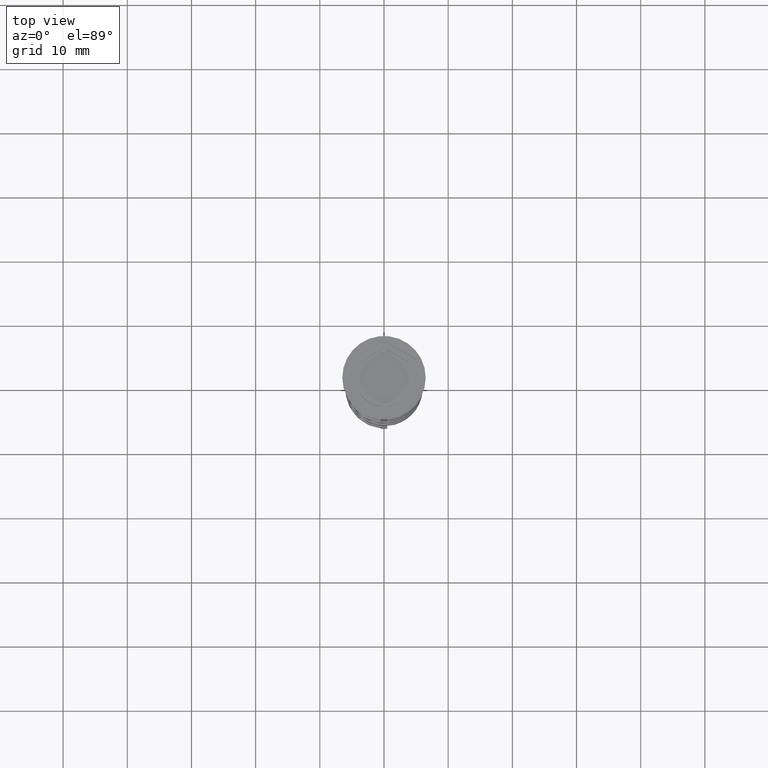
[diagram: clean part render]
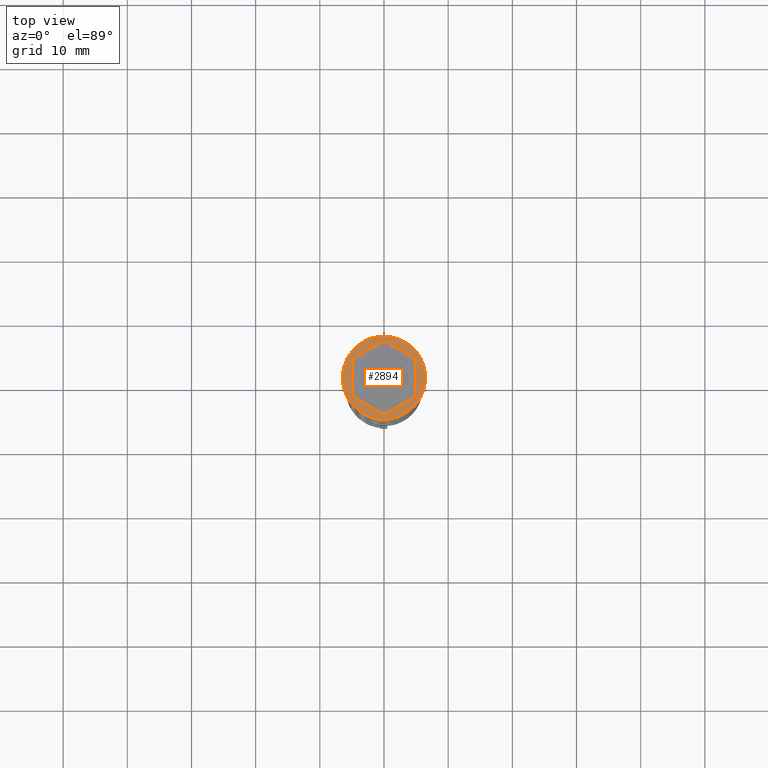
[diagram: same view with one face highlighted and labeled with its STEP entity id]
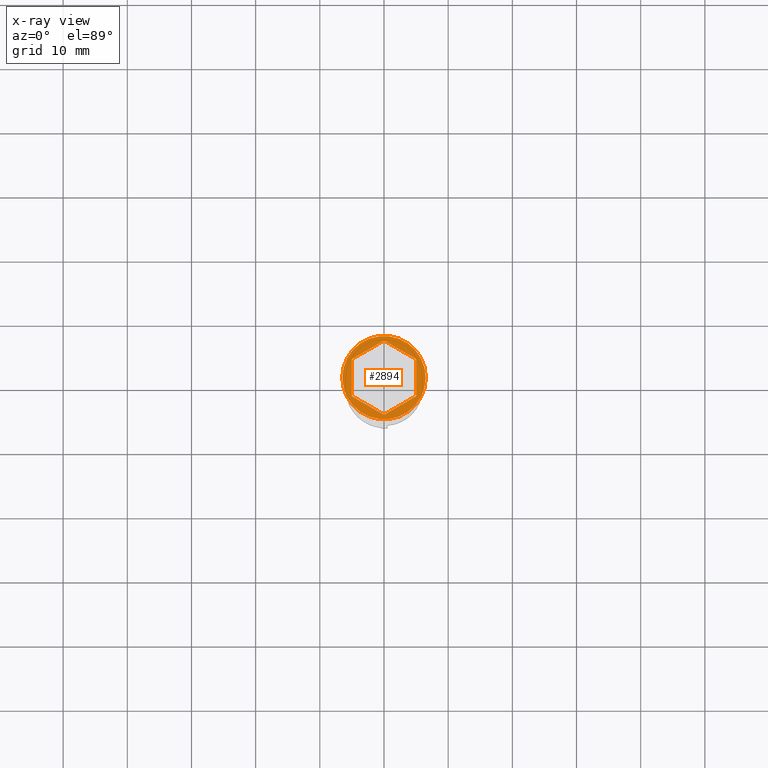
[diagram: x-ray of the same camera — body ghosted, the highlighted face saturated]
A machine part, top view. The second image highlights one B-rep face of the part: STEP entity #2894.
The next image is the same camera in x-ray: the body ghosted, the highlighted face saturated — about 0% of this face is hidden behind the body in this view.
In plain terms, the highlighted planar face has unit normal (0, -0, 1).
Its self-contained STEP definition (entity closure, byte-faithful):
#17 = DIRECTION ( 'NONE',  ( 1.000000000000000000, 0.000000000000000000, 0.000000000000000000 ) ) ;
#161 = CARTESIAN_POINT ( 'NONE',  ( 0.000000000000000000, 0.000000000000000000, 0.000000000000000000 ) ) ;
#174 = DIRECTION ( 'NONE',  ( 1.000000000000000000, 0.000000000000000000, 0.000000000000000000 ) ) ;
#386 = DIRECTION ( 'NONE',  ( 1.502314598737159278E-16, 1.000000000000000000, 0.000000000000000000 ) ) ;
#500 = LINE ( 'NONE', #1616, #2528 ) ;
#548 = CARTESIAN_POINT ( 'NONE',  ( 5.000000000000000000, -2.886751345948128655, 0.000000000000000000 ) ) ;
#671 = EDGE_CURVE ( 'NONE', #1728, #2087, #2599, .T. ) ;
#787 = CIRCLE ( 'NONE', #3348, 6.500000000000000000 ) ;
#803 = DIRECTION ( 'NONE',  ( -0.000000000000000000, -0.000000000000000000, 1.000000000000000000 ) ) ;
#898 = CARTESIAN_POINT ( 'NONE',  ( -5.000000000000000888, 2.886751345948128655, 0.000000000000000000 ) ) ;
#915 = ORIENTED_EDGE ( 'NONE', *, *, #1836, .F. ) ;
#1122 = ORIENTED_EDGE ( 'NONE', *, *, #2413, .F. ) ;
#1124 = EDGE_CURVE ( 'NONE', #2087, #2214, #2250, .T. ) ;
#1129 = CARTESIAN_POINT ( 'NONE',  ( 5.612359739892467248E-18, -5.773502691896257311, 0.000000000000000000 ) ) ;
#1265 = VERTEX_POINT ( 'NONE', #2305 ) ;
#1278 = LINE ( 'NONE', #1586, #2597 ) ;
#1391 = EDGE_LOOP ( 'NONE', ( #2288, #3077 ) ) ;
#1483 = VECTOR ( 'NONE', #3095, 1000.000000000000227 ) ;
#1586 = CARTESIAN_POINT ( 'NONE',  ( -5.000000000000000888, 2.886751345948128655, 0.000000000000000000 ) ) ;
#1604 = EDGE_LOOP ( 'NONE', ( #2980, #2019, #2224, #3513, #1122, #915 ) ) ;
#1616 = CARTESIAN_POINT ( 'NONE',  ( 0.000000000000000000, 5.773502691896257311, 0.000000000000000000 ) ) ;
#1630 = VECTOR ( 'NONE', #2359, 1000.000000000000114 ) ;
#1649 = CARTESIAN_POINT ( 'NONE',  ( 0.000000000000000000, 5.773502691896257311, 0.000000000000000000 ) ) ;
#1728 = VERTEX_POINT ( 'NONE', #3605 ) ;
#1828 = FACE_BOUND ( 'NONE', #1604, .T. ) ;
#1836 = EDGE_CURVE ( 'NONE', #1849, #3546, #500, .T. ) ;
#1849 = VERTEX_POINT ( 'NONE', #1649 ) ;
#1865 = PLANE ( 'NONE',  #2436 ) ;
#1886 = VECTOR ( 'NONE', #2403, 1000.000000000000114 ) ;
#1972 = EDGE_CURVE ( 'NONE', #1265, #2647, #787, .T. ) ;
#2019 = ORIENTED_EDGE ( 'NONE', *, *, #2322, .F. ) ;
#2070 = CIRCLE ( 'NONE', #2297, 6.500000000000000000 ) ;
#2087 = VERTEX_POINT ( 'NONE', #1129 ) ;
#2172 = DIRECTION ( 'NONE',  ( -0.8660254037844387076, -0.4999999999999998890, 0.000000000000000000 ) ) ;
#2176 = EDGE_CURVE ( 'NONE', #2647, #1265, #2070, .T. ) ;
#2214 = VERTEX_POINT ( 'NONE', #548 ) ;
#2224 = ORIENTED_EDGE ( 'NONE', *, *, #1124, .F. ) ;
#2250 = LINE ( 'NONE', #2546, #1483 ) ;
#2288 = ORIENTED_EDGE ( 'NONE', *, *, #2176, .T. ) ;
#2297 = AXIS2_PLACEMENT_3D ( 'NONE', #2757, #803, #17 ) ;
#2305 = CARTESIAN_POINT ( 'NONE',  ( -6.500000000000000000, 7.960204194457795477E-16, 0.000000000000000000 ) ) ;
#2322 = EDGE_CURVE ( 'NONE', #2214, #3556, #2884, .T. ) ;
#2351 = DIRECTION ( 'NONE',  ( -0.000000000000000000, -0.000000000000000000, 1.000000000000000000 ) ) ;
#2359 = DIRECTION ( 'NONE',  ( -0.8660254037844387076, 0.4999999999999997224, 0.000000000000000000 ) ) ;
#2403 = DIRECTION ( 'NONE',  ( 0.8660254037844387076, -0.4999999999999997224, 0.000000000000000000 ) ) ;
#2413 = EDGE_CURVE ( 'NONE', #3546, #1728, #1278, .T. ) ;
#2436 = AXIS2_PLACEMENT_3D ( 'NONE', #161, #2944, #3511 ) ;
#2528 = VECTOR ( 'NONE', #2172, 1000.000000000000114 ) ;
#2536 = EDGE_CURVE ( 'NONE', #3556, #1849, #2639, .T. ) ;
#2546 = CARTESIAN_POINT ( 'NONE',  ( 5.612359739892467248E-18, -5.773502691896257311, 0.000000000000000000 ) ) ;
#2597 = VECTOR ( 'NONE', #3205, 1000.000000000000000 ) ;
#2599 = LINE ( 'NONE', #2704, #1886 ) ;
#2639 = LINE ( 'NONE', #2876, #1630 ) ;
#2647 = VERTEX_POINT ( 'NONE', #3276 ) ;
#2653 = FACE_OUTER_BOUND ( 'NONE', #1391, .T. ) ;
#2704 = CARTESIAN_POINT ( 'NONE',  ( -5.000000000000000888, -2.886751345948129543, 0.000000000000000000 ) ) ;
#2757 = CARTESIAN_POINT ( 'NONE',  ( 0.000000000000000000, 0.000000000000000000, 0.000000000000000000 ) ) ;
#2774 = VECTOR ( 'NONE', #386, 1000.000000000000000 ) ;
#2876 = CARTESIAN_POINT ( 'NONE',  ( 5.000000000000000888, 2.886751345948129543, 0.000000000000000000 ) ) ;
#2884 = LINE ( 'NONE', #3166, #2774 ) ;
#2894 = ADVANCED_FACE ( 'NONE', ( #1828, #2653 ), #1865, .T. ) ;
#2944 = DIRECTION ( 'NONE',  ( 0.000000000000000000, -0.000000000000000000, 1.000000000000000000 ) ) ;
#2980 = ORIENTED_EDGE ( 'NONE', *, *, #2536, .F. ) ;
#3077 = ORIENTED_EDGE ( 'NONE', *, *, #1972, .T. ) ;
#3095 = DIRECTION ( 'NONE',  ( 0.8660254037844385966, 0.4999999999999998890, 0.000000000000000000 ) ) ;
#3123 = CARTESIAN_POINT ( 'NONE',  ( 5.000000000000000888, 2.886751345948129543, 0.000000000000000000 ) ) ;
#3166 = CARTESIAN_POINT ( 'NONE',  ( 5.000000000000000000, -2.886751345948128655, 0.000000000000000000 ) ) ;
#3205 = DIRECTION ( 'NONE',  ( 0.000000000000000000, -1.000000000000000000, 0.000000000000000000 ) ) ;
#3276 = CARTESIAN_POINT ( 'NONE',  ( 6.500000000000000000, 0.000000000000000000, 0.000000000000000000 ) ) ;
#3348 = AXIS2_PLACEMENT_3D ( 'NONE', #3525, #2351, #174 ) ;
#3511 = DIRECTION ( 'NONE',  ( 1.000000000000000000, 0.000000000000000000, 0.000000000000000000 ) ) ;
#3513 = ORIENTED_EDGE ( 'NONE', *, *, #671, .F. ) ;
#3525 = CARTESIAN_POINT ( 'NONE',  ( 0.000000000000000000, 0.000000000000000000, 0.000000000000000000 ) ) ;
#3546 = VERTEX_POINT ( 'NONE', #898 ) ;
#3556 = VERTEX_POINT ( 'NONE', #3123 ) ;
#3605 = CARTESIAN_POINT ( 'NONE',  ( -5.000000000000000888, -2.886751345948129543, 0.000000000000000000 ) ) ;